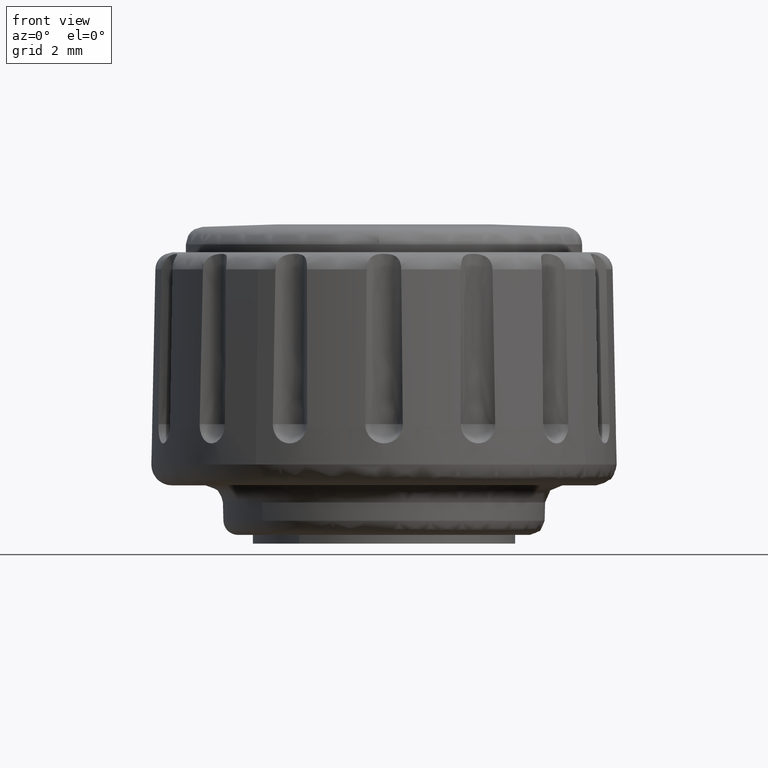
[diagram: clean part render]
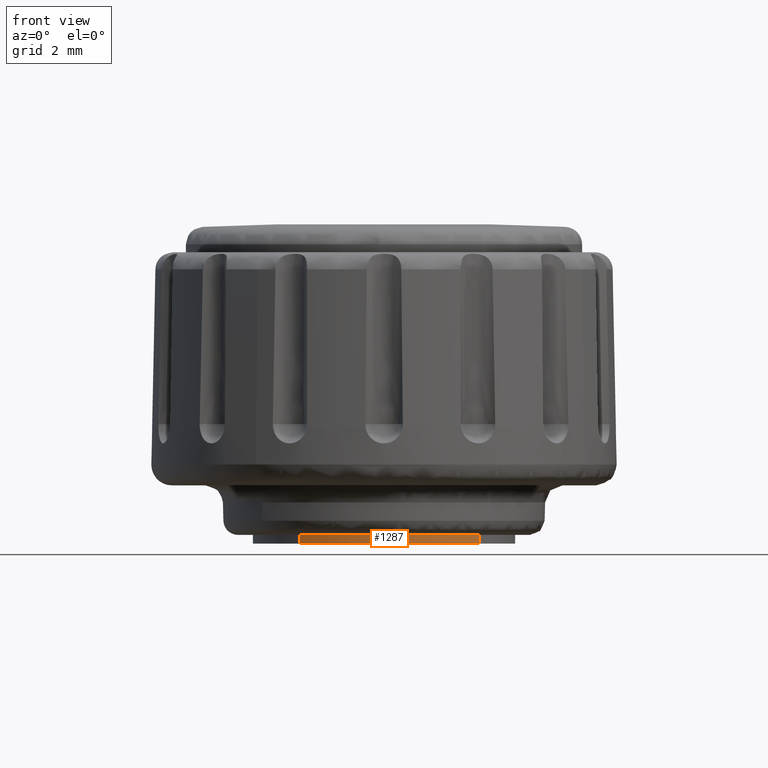
[diagram: same view with one face highlighted and labeled with its STEP entity id]
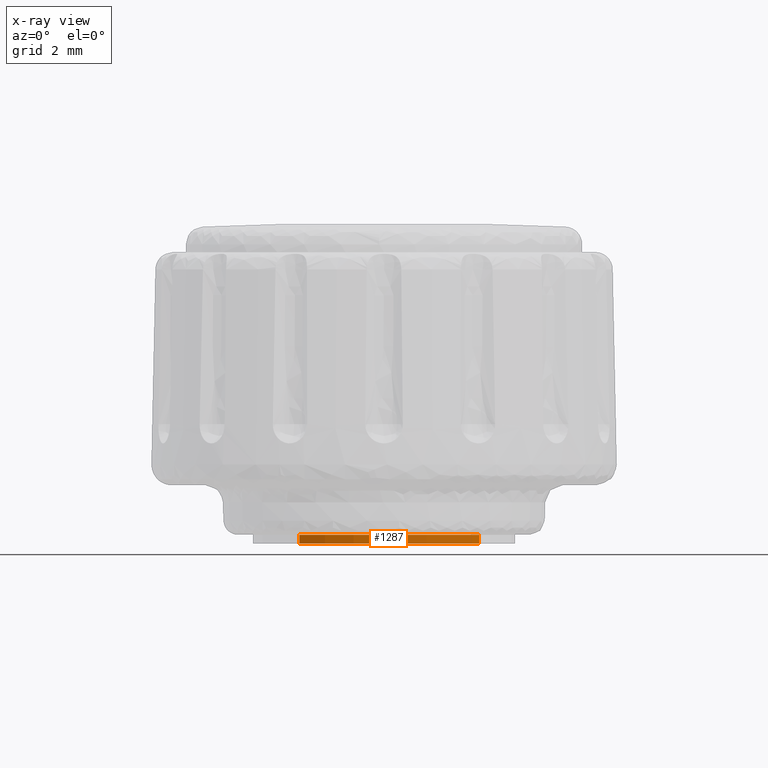
[diagram: x-ray of the same camera — body ghosted, the highlighted face saturated]
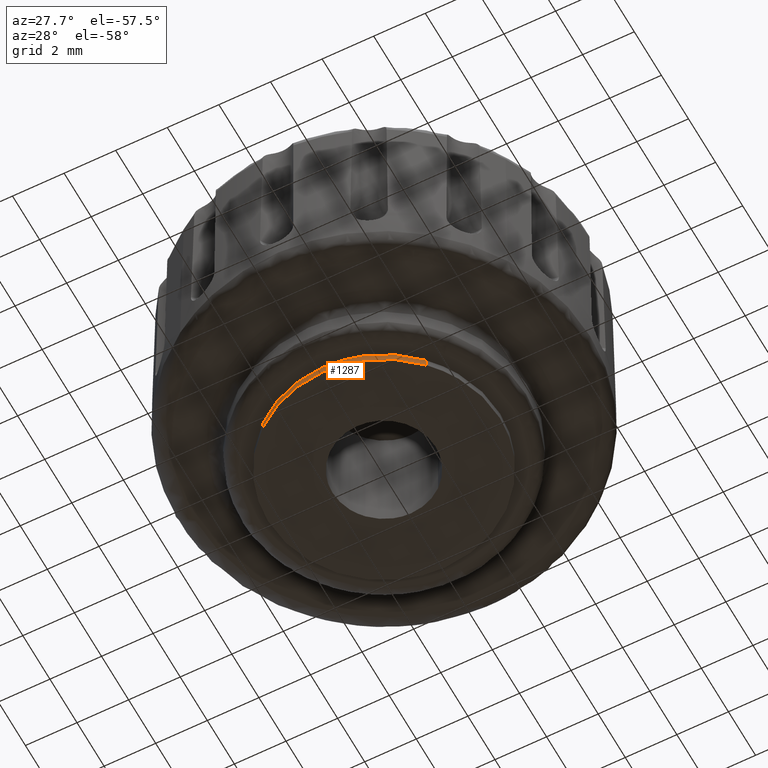
[diagram: same view with one face highlighted and labeled with its STEP entity id]
A machine part, front view. The second image highlights one B-rep face of the part: STEP entity #1287.
The next image is the same camera in x-ray: the body ghosted, the highlighted face saturated — about 0% of this face is hidden behind the body in this view.
A second angle (auxiliary view) of the same face is appended — the face is thin or edge-on in the first view.
In plain terms, the highlighted face is a freeform B-spline surface patch.
Its self-contained STEP definition (entity closure, byte-faithful):
#1072=CARTESIAN_POINT('',(-2.905839205265310,-3.436000439644054,-2.991563E-012));
#1073=VERTEX_POINT('',#1072);
#1088=CARTESIAN_POINT('',(-2.905839205314037,-3.436000439602845,0.300003000000004));
#1089=VERTEX_POINT('',#1088);
#1090=CARTESIAN_POINT('',(-2.905839205314037,-3.436000439602845,0.300003000000004));
#1091=CARTESIAN_POINT('',(-2.905839205265310,-3.436000439644054,-2.991563E-012));
#1092=QUASI_UNIFORM_CURVE('',1,(#1090,#1091),.UNSPECIFIED.,.F.,.U.);
#1093=EDGE_CURVE('',#1089,#1073,#1092,.T.);
#1148=CARTESIAN_POINT('',(3.264184623401956,-3.097595556203177,0.300003000000004));
#1149=VERTEX_POINT('',#1148);
#1162=CARTESIAN_POINT('',(3.264184623344096,-3.097595556264150,2.876287E-012));
#1163=VERTEX_POINT('',#1162);
#1164=CARTESIAN_POINT('',(3.264184623401956,-3.097595556203177,0.300003000000004));
#1165=CARTESIAN_POINT('',(3.264184623344096,-3.097595556264150,2.876287E-012));
#1166=QUASI_UNIFORM_CURVE('',1,(#1164,#1165),.UNSPECIFIED.,.F.,.U.);
#1167=EDGE_CURVE('',#1149,#1163,#1166,.T.);
#1221=CARTESIAN_POINT('',(3.264184669555293,-3.097595590621892,0.307503075000004));
#1222=CARTESIAN_POINT('',(0.338959618130032,-6.180139611787813,0.307503075000004));
#1223=CARTESIAN_POINT('',(-2.905839172719114,-3.436000393232092,0.307503075000004));
#1224=CARTESIAN_POINT('',(3.264184669555293,-3.097595590621892,-0.007687576875000));
#1225=CARTESIAN_POINT('',(0.338959618130032,-6.180139611787813,-0.007687576875000));
#1226=CARTESIAN_POINT('',(-2.905839172719114,-3.436000393232092,-0.007687576875000));
#1234=(BOUNDED_SURFACE()B_SPLINE_SURFACE(2,1,((#1221,#1224),(#1222,#1225),(#1223,#1226)),.UNSPECIFIED.,.F.,.F.,.U.)B_SPLINE_SURFACE_WITH_KNOTS((3,3),(2,2),(0.0,7.155646014189557),(0.0,0.315190651875004),.UNSPECIFIED.)GEOMETRIC_REPRESENTATION_ITEM()RATIONAL_B_SPLINE_SURFACE(((1.0,1.0),(0.718822509939086,0.718822509939086),(0.977505800795127,0.977505800795127)))REPRESENTATION_ITEM('')SURFACE());
#1235=CARTESIAN_POINT('',(-0.000000228996742,-4.499999999999994,0.0));
#1236=VERTEX_POINT('',#1235);
#1237=CARTESIAN_POINT('',(-0.000000228996742,-4.499999999999994,0.0));
#1238=CARTESIAN_POINT('',(-0.230343143247578,-4.500015450932867,-2.371382E-013));
#1239=CARTESIAN_POINT('',(-0.608756965230406,-4.470875932709533,-6.267155E-013));
#1240=CARTESIAN_POINT('',(-1.197688888425887,-4.349709323184510,-1.233021E-012));
#1241=CARTESIAN_POINT('',(-1.689952832150798,-4.183118153211225,-1.739807E-012));
#1242=CARTESIAN_POINT('',(-2.298199655276112,-3.889518857574063,-2.365998E-012));
#1243=CARTESIAN_POINT('',(-2.673452713491784,-3.632588913201416,-2.752321E-012));
#1244=CARTESIAN_POINT('',(-2.905839205265310,-3.436000439644054,-2.991563E-012));
#1245=B_SPLINE_CURVE_WITH_KNOTS('',3,(#1237,#1238,#1239,#1240,#1241,#1242,#1243,#1244),.UNSPECIFIED.,.F.,.U.,(4,1,1,1,1,4),(2.412350E-009,0.691026742823297,1.135258509661625,1.801602858259069,2.245836661797682,3.158979912666275),.UNSPECIFIED.);
#1246=EDGE_CURVE('',#1236,#1073,#1245,.T.);
#1247=ORIENTED_EDGE('',*,*,#1246,.F.);
#1248=CARTESIAN_POINT('',(3.264184623344096,-3.097595556264150,2.876287E-012));
#1249=CARTESIAN_POINT('',(3.035091818337152,-3.339101184191719,2.674419E-012));
#1250=CARTESIAN_POINT('',(2.596113495150644,-3.709173401392795,2.287606E-012));
#1251=CARTESIAN_POINT('',(1.946787562588668,-4.072708873268756,1.715442E-012));
#1252=CARTESIAN_POINT('',(1.326069523017027,-4.316391747797661,1.168487E-012));
#1253=CARTESIAN_POINT('',(0.694280552121267,-4.465270688579607,6.117763E-013));
#1254=CARTESIAN_POINT('',(0.218744917379088,-4.500008930229309,1.927507E-013));
#1255=CARTESIAN_POINT('',(-0.000000228996742,-4.499999999999994,0.0));
#1256=B_SPLINE_CURVE_WITH_KNOTS('',3,(#1248,#1249,#1250,#1251,#1252,#1253,#1254,#1255),.UNSPECIFIED.,.F.,.U.,(4,1,1,1,1,4),(3.067139E-009,0.998623492985117,1.711926488340965,2.225502345970653,2.995870915876942,3.652107776094472),.UNSPECIFIED.);
#1257=EDGE_CURVE('',#1163,#1236,#1256,.T.);
#1258=ORIENTED_EDGE('',*,*,#1257,.F.);
#1259=ORIENTED_EDGE('',*,*,#1167,.F.);
#1260=CARTESIAN_POINT('',(-0.000000228996742,-4.499999999999994,0.300003000000004));
#1261=VERTEX_POINT('',#1260);
#1262=CARTESIAN_POINT('',(3.264184623401956,-3.097595556203177,0.300003000000004));
#1263=CARTESIAN_POINT('',(3.067802444542379,-3.304579520650569,0.300003000000005));
#1264=CARTESIAN_POINT('',(2.635494004037374,-3.681011514308541,0.300003000000003));
#1265=CARTESIAN_POINT('',(1.999393243995373,-4.050515303095318,0.300003000000005));
#1266=CARTESIAN_POINT('',(1.335280394989738,-4.313656466869365,0.300003000000004));
#1267=CARTESIAN_POINT('',(0.703792509776966,-4.464582114719673,0.300003000000005));
#1268=CARTESIAN_POINT('',(0.218744555050272,-4.500005694414798,0.300003000000004));
#1269=CARTESIAN_POINT('',(-0.000000228996742,-4.499999999999994,0.300003000000004));
#1270=B_SPLINE_CURVE_WITH_KNOTS('',3,(#1262,#1263,#1264,#1265,#1266,#1267,#1268,#1269),.UNSPECIFIED.,.F.,.U.,(4,1,1,1,1,4),(3.067152E-009,0.855962696101730,1.711926488380320,2.196968623153518,2.995870915945895,3.652107776178530),.UNSPECIFIED.);
#1271=EDGE_CURVE('',#1149,#1261,#1270,.T.);
#1272=ORIENTED_EDGE('',*,*,#1271,.T.);
#1273=CARTESIAN_POINT('',(-0.000000228996742,-4.499999999999994,0.300003000000004));
#1274=CARTESIAN_POINT('',(-0.180982234666360,-4.500000887646286,0.300003000000004));
#1275=CARTESIAN_POINT('',(-0.633444543654221,-4.472688921101204,0.300003000000004));
#1276=CARTESIAN_POINT('',(-1.255354480366376,-4.339396437868073,0.300003000000005));
#1277=CARTESIAN_POINT('',(-1.817990498441435,-4.126318421205536,0.300003000000004));
#1278=CARTESIAN_POINT('',(-2.353615803736991,-3.853139115561808,0.300003000000005));
#1279=CARTESIAN_POINT('',(-2.698568067152448,-3.611323807086852,0.300003000000006));
#1280=CARTESIAN_POINT('',(-2.905839205314037,-3.436000439602845,0.300003000000004));
#1281=B_SPLINE_CURVE_WITH_KNOTS('',3,(#1273,#1274,#1275,#1276,#1277,#1278,#1279,#1280),.UNSPECIFIED.,.F.,.U.,(4,1,1,1,1,4),(2.410939E-009,0.542948458874104,1.357377056845162,1.900323309838896,2.344555335072192,3.158979912730097),.UNSPECIFIED.);
#1282=EDGE_CURVE('',#1261,#1089,#1281,.T.);
#1283=ORIENTED_EDGE('',*,*,#1282,.T.);
#1284=ORIENTED_EDGE('',*,*,#1093,.T.);
#1285=EDGE_LOOP('',(#1247,#1258,#1259,#1272,#1283,#1284));
#1286=FACE_OUTER_BOUND('',#1285,.T.);
#1287=ADVANCED_FACE('',(#1286),#1234,.T.);